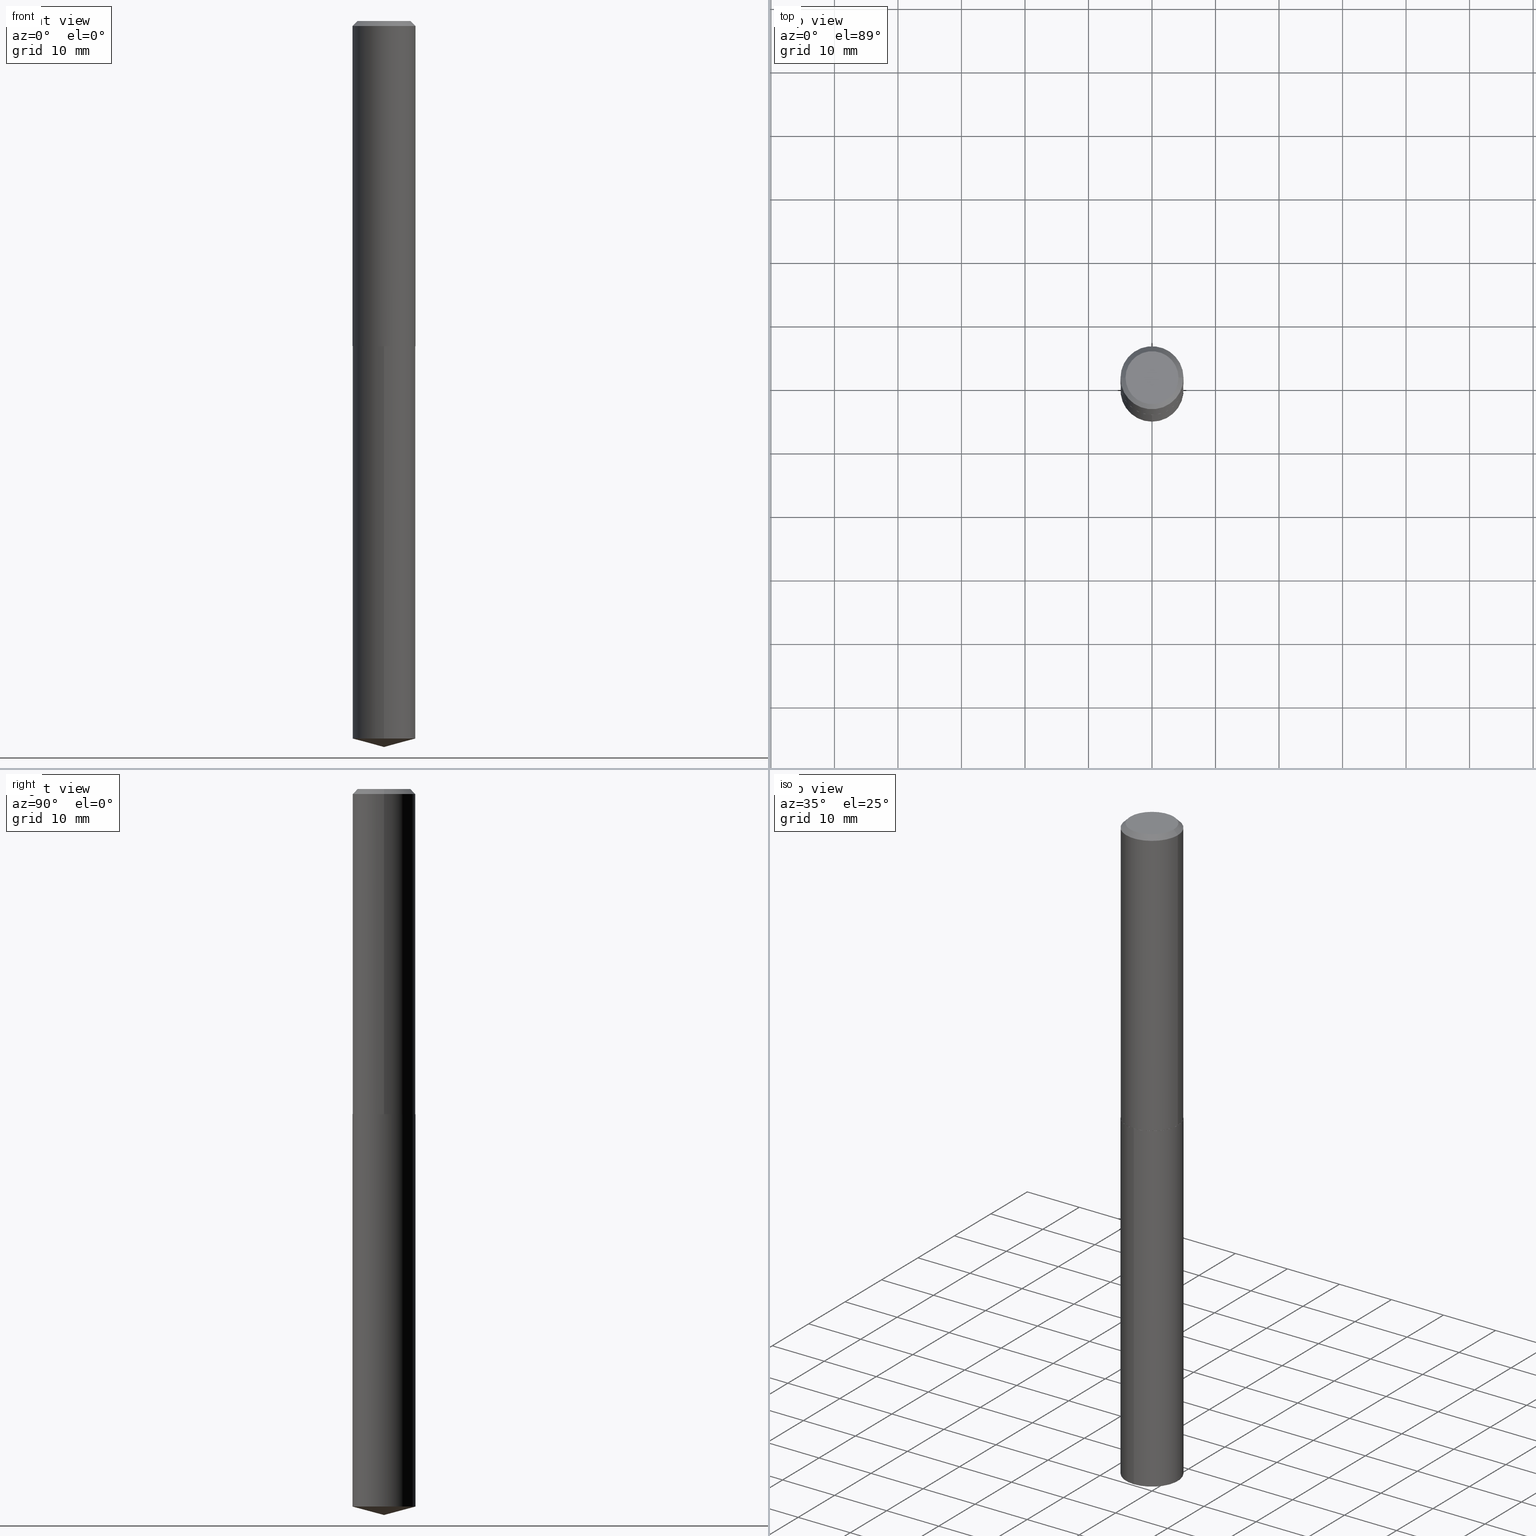
[diagram: canonical four-view strip — front | top / right | iso, engineering-drawing reading convention]
A machine part, canonical four-view strip (front | top / right | iso — engineering-drawing reading convention). The complete STEP part file that produces these views, byte-faithful:
ISO-10303-21;
HEADER;
FILE_DESCRIPTION (( 'STEP AP203' ),
    '1' );
FILE_NAME ('53125.STEP',
    '2024-04-22T19:13:53',
    ( '' ),
    ( '' ),
    'SwSTEP 2.0',
    'SolidWorks 2023',
    '' );
FILE_SCHEMA (( 'CONFIG_CONTROL_DESIGN' ));
ENDSEC;

DATA;
#1 = ORIENTED_EDGE ( 'NONE', *, *, #51, .F. ) ;
#2 = MANIFOLD_SOLID_BREP ( 'Body-Move/Copy2[1]', #135 ) ;
#3 = LOCAL_TIME ( 15, 13, 53.00000000000000000, #104 ) ;
#4 = ORIENTED_EDGE ( 'NONE', *, *, #304, .F. ) ;
#5 = FACE_OUTER_BOUND ( 'NONE', #390, .T. ) ;
#6 = PERSON_AND_ORGANIZATION_ROLE ( 'design_owner' ) ;
#7 = ORIENTED_EDGE ( 'NONE', *, *, #27, .T. ) ;
#8 = ADVANCED_FACE ( 'NONE', ( #108 ), #387, .T. ) ;
#9 = CIRCLE ( 'NONE', #95, 0.1640500000000000014 ) ;
#10 = VECTOR ( 'NONE', #227, 39.37007874015748143 ) ;
#11 = ORIENTED_EDGE ( 'NONE', *, *, #361, .T. ) ;
#12 = APPROVAL_STATUS ( 'not_yet_approved' ) ;
#13 = FACE_OUTER_BOUND ( 'NONE', #364, .T. ) ;
#14 = CC_DESIGN_PERSON_AND_ORGANIZATION_ASSIGNMENT ( #161, #6, ( #86 ) ) ;
#15 = VECTOR ( 'NONE', #233, 39.37007874015748143 ) ;
#16 = CIRCLE ( 'NONE', #160, 0.1640500000000000014 ) ;
#17 = CARTESIAN_POINT ( 'NONE',  ( 7.642090019328603538E-31, -1.091087918388490390E-16, -0.03125000000000021511 ) ) ;
#18 = ORIENTED_EDGE ( 'NONE', *, *, #222, .F. ) ;
#19 = DIRECTION ( 'NONE',  ( 1.000000000000000000, -6.982962677686263555E-15, 0.000000000000000000 ) ) ;
#20 = PRODUCT_DEFINITION ( 'UNKNOWN', '', #143, #290 ) ;
#21 = CARTESIAN_POINT ( 'NONE',  ( 1.387689962939524582E-15, 0.1952999999999929515, -2.015600000000000946 ) ) ;
#22 = DIRECTION ( 'NONE',  ( -6.982962677686266711E-15, -1.000000000000000000, 3.510303681827571802E-15 ) ) ;
#23 = AXIS2_PLACEMENT_3D ( 'NONE', #360, #324, #102 ) ;
#24 = DIRECTION ( 'NONE',  ( -6.982962677686266711E-15, -1.000000000000000000, 3.510303681827571802E-15 ) ) ;
#25 = DIRECTION ( 'NONE',  ( 1.000000000000000000, -6.982962677686265922E-15, 4.876176775795935793E-29 ) ) ;
#26 = LINE ( 'NONE', #260, #355 ) ;
#27 = EDGE_CURVE ( 'NONE', #33, #138, #326, .T. ) ;
#28 = FACE_OUTER_BOUND ( 'NONE', #250, .T. ) ;
#29 = AXIS2_PLACEMENT_3D ( 'NONE', #207, #346, #87 ) ;
#30 = EDGE_LOOP ( 'NONE', ( #193, #254, #317, #249 ) ) ;
#31 = APPROVAL ( #64, 'UNSPECIFIED' ) ;
#32 = ORIENTED_EDGE ( 'NONE', *, *, #170, .F. ) ;
#33 = VERTEX_POINT ( 'NONE', #333 ) ;
#34 = CLOSED_SHELL ( 'NONE', ( #296, #88, #376, #255, #8, #236, #294, #199 ) ) ;
#35 = AXIS2_PLACEMENT_3D ( 'NONE', #195, #47, #19 ) ;
#36 = ORIENTED_EDGE ( 'NONE', *, *, #66, .T. ) ;
#37 = EDGE_CURVE ( 'NONE', #303, #297, #305, .T. ) ;
#38 =( NAMED_UNIT ( * ) SI_UNIT ( $, .STERADIAN. ) SOLID_ANGLE_UNIT ( ) );
#39 = EDGE_LOOP ( 'NONE', ( #226, #36, #146, #75 ) ) ;
#40 = PERSON_AND_ORGANIZATION ( #132, #349 ) ;
#41 = DIRECTION ( 'NONE',  ( 6.863315791527699781E-15, 0.9659258262890704216, 0.2588190451025125793 ) ) ;
#42 = CARTESIAN_POINT ( 'NONE',  ( 4.929086925746762098E-29, -7.037429786572245232E-15, -2.015600000000000058 ) ) ;
#43 = CIRCLE ( 'NONE', #231, 0.1953000000000002789 ) ;
#44 = AXIS2_PLACEMENT_3D ( 'NONE', #197, #225, #334 ) ;
#45 = EDGE_LOOP ( 'NONE', ( #65, #127 ) ) ;
#46 = ORIENTED_EDGE ( 'NONE', *, *, #320, .T. ) ;
#47 = DIRECTION ( 'NONE',  ( -2.445468806185136597E-29, 3.491481338843145583E-15, 1.000000000000000000 ) ) ;
#48 = AXIS2_PLACEMENT_3D ( 'NONE', #262, #92, #201 ) ;
#49 = ORIENTED_EDGE ( 'NONE', *, *, #77, .T. ) ;
#50 = APPROVAL_PERSON_ORGANIZATION ( #68, #31, #183 ) ;
#51 = EDGE_CURVE ( 'NONE', #252, #366, #337, .T. ) ;
#52 = DIRECTION ( 'NONE',  ( -2.445401014960176786E-29, 3.491578419735724613E-15, 1.000000000000000000 ) ) ;
#53 = DIRECTION ( 'NONE',  ( -6.982962677686265922E-15, -1.000000000000000000, 2.797591391361252770E-15 ) ) ;
#54 = DIRECTION ( 'NONE',  ( 0.7071067811861854180, -2.468850131078463428E-15, 0.7071067811869097275 ) ) ;
#55 = DIRECTION ( 'NONE',  ( -2.438088387897960049E-29, 3.491481338843145188E-15, 1.000000000000000000 ) ) ;
#56 = CARTESIAN_POINT ( 'NONE',  ( -8.527118930292935288E-28, 1.217518100998664342E-13, 34.87007874015748143 ) ) ;
#57 = AXIS2_PLACEMENT_3D ( 'NONE', #292, #126, #274 ) ;
#58 = CARTESIAN_POINT ( 'NONE',  ( 0.1953000000000002789, -8.399456656854951226E-15, -2.015099999999999891 ) ) ;
#59 = DIRECTION ( 'NONE',  ( -2.445401014960176786E-29, 3.491578419735724613E-15, 1.000000000000000000 ) ) ;
#60 = EDGE_CURVE ( 'NONE', #252, #303, #79, .T. ) ;
#61 = CIRCLE ( 'NONE', #378, 0.1953000000000000014 ) ;
#62 = CONICAL_SURFACE ( 'NONE', #57, 0.1953000000000000014, 0.7853981633974450594 ) ;
#63 = DIRECTION ( 'NONE',  ( -2.445468806185136597E-29, 3.491481338843145583E-15, 1.000000000000000000 ) ) ;
#64 = APPROVAL_STATUS ( 'not_yet_approved' ) ;
#65 = ORIENTED_EDGE ( 'NONE', *, *, #159, .T. ) ;
#66 = EDGE_CURVE ( 'NONE', #138, #182, #176, .T. ) ;
#67 = AXIS2_PLACEMENT_3D ( 'NONE', #287, #113, #22 ) ;
#68 = PERSON_AND_ORGANIZATION ( #132, #349 ) ;
#69 = ORIENTED_EDGE ( 'NONE', *, *, #241, .T. ) ;
#70 = CALENDAR_DATE ( 2024, 22, 4 ) ;
#71 = EDGE_LOOP ( 'NONE', ( #32, #7, #368 ) ) ;
#72 = DIRECTION ( 'NONE',  ( -6.982962677686265922E-15, -1.000000000000000000, 2.797591391361252770E-15 ) ) ;
#73 = APPROVAL_ROLE ( '' ) ;
#74 = APPLICATION_CONTEXT ( 'configuration controlled 3d designs of mechanical parts and assemblies' ) ;
#75 = ORIENTED_EDGE ( 'NONE', *, *, #94, .F. ) ;
#76 = DIRECTION ( 'NONE',  ( 1.000000000000000000, -6.982962677686269077E-15, 0.000000000000000000 ) ) ;
#77 = EDGE_CURVE ( 'NONE', #209, #297, #315, .T. ) ;
#78 = CALENDAR_DATE ( 2024, 22, 4 ) ;
#79 = CIRCLE ( 'NONE', #242, 0.1953000000000002789 ) ;
#80 = DIRECTION ( 'NONE',  ( -6.982962677686265922E-15, -1.000000000000000000, 2.797591391361252770E-15 ) ) ;
#81 = CONICAL_SURFACE ( 'NONE', #211, 0.1953000000000000014, 0.7853981633974450594 ) ;
#82 = COORDINATED_UNIVERSAL_TIME_OFFSET ( 5, 0, .BEHIND. ) ;
#83 = CARTESIAN_POINT ( 'NONE',  ( 1.087647220505556857E-28, -1.552919124739208263E-14, -4.447669522718203261 ) ) ;
#84 = PLANE ( 'NONE',  #117 ) ;
#85 = DIRECTION ( 'NONE',  ( -2.445401014960176786E-29, 3.491578419735724613E-15, 1.000000000000000000 ) ) ;
#86 = PRODUCT ( '53125', '53125', '', ( #321 ) ) ;
#87 = DIRECTION ( 'NONE',  ( -6.982962677686265922E-15, -1.000000000000000000, 2.797591391361252770E-15 ) ) ;
#88 = ADVANCED_FACE ( 'NONE', ( #121 ), #347, .T. ) ;
#89 = DIRECTION ( 'NONE',  ( -6.745023994389847810E-15, -0.9659258262890687563, 0.2588190451025194627 ) ) ;
#90 = LOCAL_TIME ( 15, 13, 53.00000000000000000, #256 ) ;
#91 = FACE_OUTER_BOUND ( 'NONE', #30, .T. ) ;
#92 = DIRECTION ( 'NONE',  ( -2.445468806185136597E-29, 3.491481338843145583E-15, 1.000000000000000000 ) ) ;
#93 = CARTESIAN_POINT ( 'NONE',  ( 0.000000000000000000, 0.000000000000000000, 0.000000000000000000 ) ) ;
#94 = EDGE_CURVE ( 'NONE', #245, #168, #310, .T. ) ;
#95 = AXIS2_PLACEMENT_3D ( 'NONE', #229, #120, #147 ) ;
#96 = COORDINATED_UNIVERSAL_TIME_OFFSET ( 5, 0, .BEHIND. ) ;
#97 = CARTESIAN_POINT ( 'NONE',  ( 0.1948000000000008891, -8.397710916185535244E-15, -2.015600000000000058 ) ) ;
#98 = EDGE_CURVE ( 'NONE', #297, #366, #61, .T. ) ;
#99 = APPROVAL_DATE_TIME ( #248, #137 ) ;
#100 = ORIENTED_EDGE ( 'NONE', *, *, #162, .F. ) ;
#101 = VECTOR ( 'NONE', #41, 39.37007874015749564 ) ;
#102 = DIRECTION ( 'NONE',  ( 1.000000000000000000, 0.000000000000000000, 0.000000000000000000 ) ) ;
#103 = ORIENTED_EDGE ( 'NONE', *, *, #60, .F. ) ;
#104 = COORDINATED_UNIVERSAL_TIME_OFFSET ( 5, 0, .BEHIND. ) ;
#105 = CC_DESIGN_DATE_AND_TIME_ASSIGNMENT ( #219, #319, ( #20 ) ) ;
#106 = ORIENTED_EDGE ( 'NONE', *, *, #385, .F. ) ;
#107 = CIRCLE ( 'NONE', #44, 0.1948000000000008891 ) ;
#108 = FACE_OUTER_BOUND ( 'NONE', #134, .T. ) ;
#109 = CARTESIAN_POINT ( 'NONE',  ( -0.1953000000000002789, -5.647994082963345492E-15, -2.015099999999999891 ) ) ;
#110 = DIRECTION ( 'NONE',  ( -2.445468806185136597E-29, 3.491481338843145583E-15, 1.000000000000000000 ) ) ;
#111 = CARTESIAN_POINT ( 'NONE',  ( 4.929086925746762098E-29, -7.037429786572245232E-15, -2.015600000000000058 ) ) ;
#112 = APPROVAL_STATUS ( 'not_yet_approved' ) ;
#113 = DIRECTION ( 'NONE',  ( -2.445401014960176786E-29, 3.491578419735724613E-15, 1.000000000000000000 ) ) ;
#114 = DIRECTION ( 'NONE',  ( 2.445401014960177067E-29, -3.491578419735724218E-15, -1.000000000000000000 ) ) ;
#115 = VECTOR ( 'NONE', #54, 39.37007874015748143 ) ;
#116 = FACE_OUTER_BOUND ( 'NONE', #196, .T. ) ;
#117 = AXIS2_PLACEMENT_3D ( 'NONE', #311, #55, #25 ) ;
#118 = DIRECTION ( 'NONE',  ( -2.445401014960176786E-29, 3.491578419735724218E-15, 1.000000000000000000 ) ) ;
#119 = DIRECTION ( 'NONE',  ( -2.445401014960176786E-29, 3.491578419735724613E-15, 1.000000000000000000 ) ) ;
#120 = DIRECTION ( 'NONE',  ( -2.445468806185136597E-29, 3.491481338843145583E-15, 1.000000000000000000 ) ) ;
#121 = FACE_OUTER_BOUND ( 'NONE', #221, .T. ) ;
#122 = ADVANCED_FACE ( 'NONE', ( #28 ), #362, .T. ) ;
#123 = CARTESIAN_POINT ( 'NONE',  ( 4.927864191343668736E-29, -7.035684045902822940E-15, -2.015099999999999891 ) ) ;
#124 = CARTESIAN_POINT ( 'NONE',  ( -1.363772610952019029E-15, -0.1953000000000155445, -4.447669522718202373 ) ) ;
#125 = ORIENTED_EDGE ( 'NONE', *, *, #170, .T. ) ;
#126 = DIRECTION ( 'NONE',  ( 2.445468806185136597E-29, -3.491481338843145583E-15, -1.000000000000000000 ) ) ;
#127 = ORIENTED_EDGE ( 'NONE', *, *, #299, .T. ) ;
#128 = AXIS2_PLACEMENT_3D ( 'NONE', #154, #177, #386 ) ;
#129 = DIRECTION ( 'NONE',  ( -1.000000000000000000, 6.982962677686265922E-15, 0.000000000000000000 ) ) ;
#130 = CALENDAR_DATE ( 2024, 22, 4 ) ;
#131 = ORIENTED_EDGE ( 'NONE', *, *, #51, .T. ) ;
#132 = PERSON ( 'UNSPECIFIED', 'UNSPECIFIED', 'UNSPECIFIED', ('UNSPECIFIED'), ('UNSPECIFIED'), ('UNSPECIFIED') ) ;
#133 = CARTESIAN_POINT ( 'NONE',  ( 0.1953000000000002789, -8.399456656854951226E-15, -2.015099999999999891 ) ) ;
#134 = EDGE_LOOP ( 'NONE', ( #4, #11, #276, #103 ) ) ;
#135 = CLOSED_SHELL ( 'NONE', ( #172, #212, #122, #264, #343 ) ) ;
#136 = CIRCLE ( 'NONE', #29, 0.1953000000000000014 ) ;
#137 = APPROVAL ( #12, 'UNSPECIFIED' ) ;
#138 = VERTEX_POINT ( 'NONE', #383 ) ;
#139 = CARTESIAN_POINT ( 'NONE',  ( -0.1953000000000000014, -2.184706455931358572E-15, -0.03125000000000021511 ) ) ;
#140 = MANIFOLD_SOLID_BREP ( 'Body-Move/Copy2[2]', #34 ) ;
#141 = ORIENTED_EDGE ( 'NONE', *, *, #66, .F. ) ;
#142 = AXIS2_PLACEMENT_3D ( 'NONE', #171, #232, #351 ) ;
#143 = PRODUCT_DEFINITION_FORMATION_WITH_SPECIFIED_SOURCE ( 'ANY', '', #86, .NOT_KNOWN. ) ;
#144 = ORIENTED_EDGE ( 'NONE', *, *, #304, .T. ) ;
#145 = DIRECTION ( 'NONE',  ( -2.445468806185136597E-29, 3.491481338843145583E-15, 1.000000000000000000 ) ) ;
#146 = ORIENTED_EDGE ( 'NONE', *, *, #320, .F. ) ;
#147 = DIRECTION ( 'NONE',  ( 1.000000000000000000, -6.982962677686266711E-15, 4.876144440966847435E-29 ) ) ;
#148 = CC_DESIGN_PERSON_AND_ORGANIZATION_ASSIGNMENT ( #220, #370, ( #192 ) ) ;
#149 = CC_DESIGN_APPROVAL ( #31, ( #143 ) ) ;
#150 = LINE ( 'NONE', #340, #175 ) ;
#151 = CYLINDRICAL_SURFACE ( 'NONE', #167, 0.1953000000000000014 ) ;
#152 = DIRECTION ( 'NONE',  ( -2.445468806185136597E-29, 3.491481338843145583E-15, 1.000000000000000000 ) ) ;
#153 = CARTESIAN_POINT ( 'NONE',  ( -0.1640500000000000014, 1.200109423193855424E-15, 9.552245033267324686E-19 ) ) ;
#154 = CARTESIAN_POINT ( 'NONE',  ( -1.167985862904636054E-47, 1.667574263899818204E-33, 4.776122516674673095E-19 ) ) ;
#155 = FACE_OUTER_BOUND ( 'NONE', #71, .T. ) ;
#156 = VECTOR ( 'NONE', #373, 39.37007874015748143 ) ;
#157 = CIRCLE ( 'NONE', #180, 0.1953000000000000014 ) ;
#158 = EDGE_LOOP ( 'NONE', ( #331, #164 ) ) ;
#159 = EDGE_CURVE ( 'NONE', #271, #209, #9, .T. ) ;
#160 = AXIS2_PLACEMENT_3D ( 'NONE', #272, #63, #358 ) ;
#161 = PERSON_AND_ORGANIZATION ( #132, #349 ) ;
#162 = EDGE_CURVE ( 'NONE', #138, #245, #204, .T. ) ;
#163 = PERSON_AND_ORGANIZATION_ROLE ( 'creator' ) ;
#164 = ORIENTED_EDGE ( 'NONE', *, *, #361, .F. ) ;
#165 = DIRECTION ( 'NONE',  ( -2.445468806185136597E-29, 3.491481338843145583E-15, 1.000000000000000000 ) ) ;
#166 = PERSON_AND_ORGANIZATION ( #132, #349 ) ;
#167 = AXIS2_PLACEMENT_3D ( 'NONE', #382, #119, #234 ) ;
#168 = VERTEX_POINT ( 'NONE', #235 ) ;
#169 = ORIENTED_EDGE ( 'NONE', *, *, #94, .T. ) ;
#170 = EDGE_CURVE ( 'NONE', #33, #245, #26, .T. ) ;
#171 = CARTESIAN_POINT ( 'NONE',  ( 4.929086925746762098E-29, -7.037429786572245232E-15, -2.015600000000000058 ) ) ;
#172 = ADVANCED_FACE ( 'NONE', ( #377 ), #239, .T. ) ;
#173 = APPROVAL_DATE_TIME ( #375, #283 ) ;
#174 = CARTESIAN_POINT ( 'NONE',  ( -1.363772610952078588E-15, -0.1953000000000070235, -2.015599999999999614 ) ) ;
#175 = VECTOR ( 'NONE', #198, 39.37007874015748143 ) ;
#176 = LINE ( 'NONE', #21, #348 ) ;
#177 = DIRECTION ( 'NONE',  ( 2.438088387897960049E-29, -3.491481338843145188E-15, -1.000000000000000000 ) ) ;
#178 = FACE_OUTER_BOUND ( 'NONE', #45, .T. ) ;
#179 = AXIS2_PLACEMENT_3D ( 'NONE', #56, #85, #24 ) ;
#180 = AXIS2_PLACEMENT_3D ( 'NONE', #309, #291, #53 ) ;
#181 = APPLICATION_CONTEXT ( 'configuration controlled 3d designs of mechanical parts and assemblies' ) ;
#182 = VERTEX_POINT ( 'NONE', #206 ) ;
#183 = APPROVAL_ROLE ( '' ) ;
#184 = ORIENTED_EDGE ( 'NONE', *, *, #37, .T. ) ;
#185 = EDGE_CURVE ( 'NONE', #301, #303, #314, .T. ) ;
#186 = DATE_AND_TIME ( #325, #223 ) ;
#187 = EDGE_LOOP ( 'NONE', ( #46, #257 ) ) ;
#188 = APPLICATION_PROTOCOL_DEFINITION ( 'international standard', 'config_control_design', 1994, #181 ) ;
#189 = VERTEX_POINT ( 'NONE', #265 ) ;
#190 = PLANE ( 'NONE',  #363 ) ;
#191 = VECTOR ( 'NONE', #371, 39.37007874015748143 ) ;
#192 = SECURITY_CLASSIFICATION ( '', '', #200 ) ;
#193 = ORIENTED_EDGE ( 'NONE', *, *, #77, .F. ) ;
#194 = ORIENTED_EDGE ( 'NONE', *, *, #267, .F. ) ;
#195 = CARTESIAN_POINT ( 'NONE',  ( 4.927864191343668736E-29, -7.035684045902822940E-15, -2.015099999999999891 ) ) ;
#196 = EDGE_LOOP ( 'NONE', ( #1, #281, #184, #106 ) ) ;
#197 = CARTESIAN_POINT ( 'NONE',  ( 4.929086925746761537E-29, -7.037429786572244443E-15, -2.015600000000000058 ) ) ;
#198 = DIRECTION ( 'NONE',  ( -0.7071067811865452413, 2.468850131082233000E-15, -0.7071067811865497932 ) ) ;
#199 = ADVANCED_FACE ( 'NONE', ( #178 ), #342, .F. ) ;
#200 = SECURITY_CLASSIFICATION_LEVEL ( 'unclassified' ) ;
#201 = DIRECTION ( 'NONE',  ( 1.000000000000000000, -6.982962677686265922E-15, 4.876176775795935793E-29 ) ) ;
#202 = CARTESIAN_POINT ( 'NONE',  ( -0.1953000000000001402, 1.387689962939476659E-15, -9.606680231267837403E-30 ) ) ;
#203 = PRODUCT_DEFINITION_SHAPE ( 'NONE', 'NONE',  #20 ) ;
#204 = CIRCLE ( 'NONE', #300, 0.1953000000000000014 ) ;
#205 = CC_DESIGN_SECURITY_CLASSIFICATION ( #192, ( #143 ) ) ;
#206 = CARTESIAN_POINT ( 'NONE',  ( 1.387689962939584536E-15, 0.1952999999999929237, -2.015600000000000946 ) ) ;
#207 = CARTESIAN_POINT ( 'NONE',  ( 4.929086925746762098E-29, -7.037429786572245232E-15, -2.015600000000000058 ) ) ;
#208 = DIRECTION ( 'NONE',  ( 1.000000000000000000, -6.982962677686265922E-15, 0.000000000000000000 ) ) ;
#209 = VERTEX_POINT ( 'NONE', #293 ) ;
#210 = AXIS2_PLACEMENT_3D ( 'NONE', #17, #145, #338 ) ;
#211 = AXIS2_PLACEMENT_3D ( 'NONE', #246, #318, #129 ) ;
#212 = ADVANCED_FACE ( 'NONE', ( #155 ), #237, .T. ) ;
#213 = PERSON_AND_ORGANIZATION ( #132, #349 ) ;
#214 = ORIENTED_EDGE ( 'NONE', *, *, #98, .T. ) ;
#215 = PERSON_AND_ORGANIZATION_ROLE ( 'creator' ) ;
#216 = VECTOR ( 'NONE', #381, 39.37007874015748143 ) ;
#217 = COORDINATED_UNIVERSAL_TIME_OFFSET ( 5, 0, .BEHIND. ) ;
#218 = DIRECTION ( 'NONE',  ( 1.000000000000000000, -6.982962677686263555E-15, 0.000000000000000000 ) ) ;
#219 = DATE_AND_TIME ( #70, #3 ) ;
#220 = PERSON_AND_ORGANIZATION ( #132, #349 ) ;
#221 = EDGE_LOOP ( 'NONE', ( #69, #131, #354, #330 ) ) ;
#222 = EDGE_CURVE ( 'NONE', #271, #366, #150, .T. ) ;
#223 = LOCAL_TIME ( 15, 13, 53.00000000000000000, #217 ) ;
#224 = CARTESIAN_POINT ( 'NONE',  ( 4.927864191343668736E-29, -7.035684045902822940E-15, -2.015099999999999891 ) ) ;
#225 = DIRECTION ( 'NONE',  ( -2.445468806185136597E-29, 3.491481338843145583E-15, 1.000000000000000000 ) ) ;
#226 = ORIENTED_EDGE ( 'NONE', *, *, #228, .T. ) ;
#227 = DIRECTION ( 'NONE',  ( -0.7071067811861854180, 7.493145998869046229E-15, 0.7071067811869097275 ) ) ;
#228 = EDGE_CURVE ( 'NONE', #245, #138, #157, .T. ) ;
#229 = CARTESIAN_POINT ( 'NONE',  ( -2.335971725809272108E-47, 3.335148527799636409E-33, 9.552245033349346191E-19 ) ) ;
#230 = CARTESIAN_POINT ( 'NONE',  ( 4.929086925746761537E-29, -7.037429786572244443E-15, -2.015600000000000058 ) ) ;
#231 = AXIS2_PLACEMENT_3D ( 'NONE', #123, #352, #344 ) ;
#232 = DIRECTION ( 'NONE',  ( -2.445401014960176786E-29, 3.491578419735724613E-15, 1.000000000000000000 ) ) ;
#233 = DIRECTION ( 'NONE',  ( 0.7071067811865452413, -7.319954787623248157E-15, -0.7071067811865497932 ) ) ;
#234 = DIRECTION ( 'NONE',  ( -6.982962677686265922E-15, -1.000000000000000000, 2.797591391361252770E-15 ) ) ;
#235 = CARTESIAN_POINT ( 'NONE',  ( -1.363772610952078588E-15, -0.1953000000000070235, -2.015599999999999614 ) ) ;
#236 = ADVANCED_FACE ( 'NONE', ( #116 ), #266, .T. ) ;
#237 = CONICAL_SURFACE ( 'NONE', #67, 146.9311341562578832, 1.308996938995752091 ) ;
#238 = CC_DESIGN_APPROVAL ( #137, ( #20 ) ) ;
#239 = CYLINDRICAL_SURFACE ( 'NONE', #142, 0.1953000000000000014 ) ;
#240 = DIRECTION ( 'NONE',  ( 1.000000000000000000, -6.982962677686265922E-15, 4.876176775795935793E-29 ) ) ;
#241 = EDGE_CURVE ( 'NONE', #303, #252, #43, .T. ) ;
#242 = AXIS2_PLACEMENT_3D ( 'NONE', #286, #152, #312 ) ;
#243 = CIRCLE ( 'NONE', #210, 0.1953000000000000014 ) ;
#244 =( NAMED_UNIT ( * ) PLANE_ANGLE_UNIT ( ) SI_UNIT ( $, .RADIAN. ) );
#245 = VERTEX_POINT ( 'NONE', #124 ) ;
#246 = CARTESIAN_POINT ( 'NONE',  ( 7.642090019328603538E-31, -1.091087918388490390E-16, -0.03125000000000021511 ) ) ;
#247 = CC_DESIGN_DATE_AND_TIME_ASSIGNMENT ( #259, #372, ( #192 ) ) ;
#248 = DATE_AND_TIME ( #130, #302 ) ;
#249 = ORIENTED_EDGE ( 'NONE', *, *, #385, .T. ) ;
#250 = EDGE_LOOP ( 'NONE', ( #295, #125, #100 ) ) ;
#251 = LINE ( 'NONE', #109, #10 ) ;
#252 = VERTEX_POINT ( 'NONE', #380 ) ;
#253 = CC_DESIGN_APPROVAL ( #283, ( #192 ) ) ;
#254 = ORIENTED_EDGE ( 'NONE', *, *, #159, .F. ) ;
#255 = ADVANCED_FACE ( 'NONE', ( #353 ), #84, .F. ) ;
#256 = COORDINATED_UNIVERSAL_TIME_OFFSET ( 5, 0, .BEHIND. ) ;
#257 = ORIENTED_EDGE ( 'NONE', *, *, #267, .T. ) ;
#258 = DIRECTION ( 'NONE',  ( 6.982962677686265922E-15, 1.000000000000000000, -3.491578419735724218E-15 ) ) ;
#259 = DATE_AND_TIME ( #280, #90 ) ;
#260 = CARTESIAN_POINT ( 'NONE',  ( 1.100430456732079610E-28, -1.571210288881076234E-14, -4.500000000000000000 ) ) ;
#261 = CONICAL_SURFACE ( 'NONE', #35, 0.1953000000000002789, 0.7853981633969361331 ) ;
#262 = CARTESIAN_POINT ( 'NONE',  ( 0.000000000000000000, 0.000000000000000000, 0.000000000000000000 ) ) ;
#263 = DIRECTION ( 'NONE',  ( -2.445468806185136597E-29, 3.491481338843145583E-15, 1.000000000000000000 ) ) ;
#264 = ADVANCED_FACE ( 'NONE', ( #288 ), #151, .T. ) ;
#265 = CARTESIAN_POINT ( 'NONE',  ( -0.1948000000000008891, -5.650643310137454326E-15, -2.015600000000000058 ) ) ;
#266 = CYLINDRICAL_SURFACE ( 'NONE', #379, 0.1953000000000001402 ) ;
#267 = EDGE_CURVE ( 'NONE', #182, #168, #136, .T. ) ;
#268 = EDGE_LOOP ( 'NONE', ( #141, #359, #169, #194 ) ) ;
#269 = ORIENTED_EDGE ( 'NONE', *, *, #336, .T. ) ;
#270 = AXIS2_PLACEMENT_3D ( 'NONE', #230, #165, #76 ) ;
#271 = VERTEX_POINT ( 'NONE', #153 ) ;
#272 = CARTESIAN_POINT ( 'NONE',  ( -2.335971725809272108E-47, 3.335148527799636409E-33, 9.552245033349346191E-19 ) ) ;
#273 = ORIENTED_EDGE ( 'NONE', *, *, #299, .F. ) ;
#274 = DIRECTION ( 'NONE',  ( -1.000000000000000000, 6.982962677686265922E-15, 0.000000000000000000 ) ) ;
#275 =( CONVERSION_BASED_UNIT ( 'INCH', #285 ) LENGTH_UNIT ( ) NAMED_UNIT ( #328 ) );
#276 = ORIENTED_EDGE ( 'NONE', *, *, #185, .T. ) ;
#277 = AXIS2_PLACEMENT_3D ( 'NONE', #224, #110, #218 ) ;
#278 = CIRCLE ( 'NONE', #307, 0.1953000000000000014 ) ;
#279 = CC_DESIGN_PERSON_AND_ORGANIZATION_ASSIGNMENT ( #339, #367, ( #143 ) ) ;
#280 = CALENDAR_DATE ( 2024, 22, 4 ) ;
#281 = ORIENTED_EDGE ( 'NONE', *, *, #60, .T. ) ;
#282 = CARTESIAN_POINT ( 'NONE',  ( 0.1953000000000001402, -1.363772610952128681E-15, 9.523173243129469184E-30 ) ) ;
#283 = APPROVAL ( #112, 'UNSPECIFIED' ) ;
#284 = PERSON_AND_ORGANIZATION ( #132, #349 ) ;
#285 = LENGTH_MEASURE_WITH_UNIT ( LENGTH_MEASURE( 0.02539999999999999897 ), #341 );
#286 = CARTESIAN_POINT ( 'NONE',  ( 4.927864191343668736E-29, -7.035684045902822940E-15, -2.015099999999999891 ) ) ;
#287 = CARTESIAN_POINT ( 'NONE',  ( -8.527118930292935288E-28, 1.217518100998664342E-13, 34.87007874015748143 ) ) ;
#288 = FACE_OUTER_BOUND ( 'NONE', #268, .T. ) ;
#289 = CARTESIAN_POINT ( 'NONE',  ( 0.1953000000000000014, -1.448964050803629211E-15, -0.03125000000000021511 ) ) ;
#290 = DESIGN_CONTEXT ( 'detailed design', #74, 'design' ) ;
#291 = DIRECTION ( 'NONE',  ( -2.445401014960176786E-29, 3.491578419735724613E-15, 1.000000000000000000 ) ) ;
#292 = CARTESIAN_POINT ( 'NONE',  ( 7.642090019328603538E-31, -1.091087918388490390E-16, -0.03125000000000021511 ) ) ;
#293 = CARTESIAN_POINT ( 'NONE',  ( 0.1640500000000000014, -1.287214373669024480E-15, 9.552245033434404887E-19 ) ) ;
#294 = ADVANCED_FACE ( 'NONE', ( #91 ), #62, .T. ) ;
#295 = ORIENTED_EDGE ( 'NONE', *, *, #27, .F. ) ;
#296 = ADVANCED_FACE ( 'NONE', ( #5 ), #81, .T. ) ;
#297 = VERTEX_POINT ( 'NONE', #323 ) ;
#298 = APPROVAL_DATE_TIME ( #186, #31 ) ;
#299 = EDGE_CURVE ( 'NONE', #209, #271, #16, .T. ) ;
#300 = AXIS2_PLACEMENT_3D ( 'NONE', #83, #59, #80 ) ;
#301 = VERTEX_POINT ( 'NONE', #97 ) ;
#302 = LOCAL_TIME ( 15, 13, 53.00000000000000000, #96 ) ;
#303 = VERTEX_POINT ( 'NONE', #133 ) ;
#304 = EDGE_CURVE ( 'NONE', #189, #252, #251, .T. ) ;
#305 = LINE ( 'NONE', #282, #191 ) ;
#306 = CARTESIAN_POINT ( 'NONE',  ( 1.100458024364974923E-28, -1.571171153631659819E-14, -4.500000000000000000 ) ) ;
#307 = AXIS2_PLACEMENT_3D ( 'NONE', #111, #52, #72 ) ;
#308 = ADVANCED_BREP_SHAPE_REPRESENTATION ( '53125', ( #2, #140, #23 ), #332 ) ;
#309 = CARTESIAN_POINT ( 'NONE',  ( 1.087647220505556857E-28, -1.552919124739208263E-14, -4.447669522718203261 ) ) ;
#310 = LINE ( 'NONE', #174, #156 ) ;
#311 = CARTESIAN_POINT ( 'NONE',  ( 6.902925574925449087E-29, -4.210780497029287161E-15, -2.015600000000000058 ) ) ;
#312 = DIRECTION ( 'NONE',  ( 1.000000000000000000, -6.982962677686263555E-15, 0.000000000000000000 ) ) ;
#313 = APPROVAL_PERSON_ORGANIZATION ( #284, #283, #73 ) ;
#314 = LINE ( 'NONE', #58, #115 ) ;
#315 = LINE ( 'NONE', #289, #15 ) ;
#316 = CC_DESIGN_PERSON_AND_ORGANIZATION_ASSIGNMENT ( #213, #215, ( #20 ) ) ;
#317 = ORIENTED_EDGE ( 'NONE', *, *, #222, .T. ) ;
#318 = DIRECTION ( 'NONE',  ( 2.445468806185136597E-29, -3.491481338843145583E-15, -1.000000000000000000 ) ) ;
#319 = DATE_TIME_ROLE ( 'creation_date' ) ;
#320 = EDGE_CURVE ( 'NONE', #168, #182, #278, .T. ) ;
#321 = MECHANICAL_CONTEXT ( 'NONE', #181, 'mechanical' ) ;
#322 = ORIENTED_EDGE ( 'NONE', *, *, #241, .F. ) ;
#323 = CARTESIAN_POINT ( 'NONE',  ( 0.1953000000000000014, -1.472881402790976795E-15, -0.03125000000000021511 ) ) ;
#324 = DIRECTION ( 'NONE',  ( 0.000000000000000000, 0.000000000000000000, 1.000000000000000000 ) ) ;
#325 = CALENDAR_DATE ( 2024, 22, 4 ) ;
#326 = LINE ( 'NONE', #306, #101 ) ;
#327 = PRODUCT_RELATED_PRODUCT_CATEGORY ( 'detail', '', ( #86 ) ) ;
#328 = DIMENSIONAL_EXPONENTS ( 1.000000000000000000, 0.000000000000000000, 0.000000000000000000, 0.000000000000000000, 0.000000000000000000, 0.000000000000000000, 0.000000000000000000 ) ;
#329 = APPLICATION_PROTOCOL_DEFINITION ( 'international standard', 'config_control_design', 1994, #74 ) ;
#330 = ORIENTED_EDGE ( 'NONE', *, *, #37, .F. ) ;
#331 = ORIENTED_EDGE ( 'NONE', *, *, #336, .F. ) ;
#332 =( GEOMETRIC_REPRESENTATION_CONTEXT ( 3 ) GLOBAL_UNCERTAINTY_ASSIGNED_CONTEXT ( ( #384 ) ) GLOBAL_UNIT_ASSIGNED_CONTEXT ( ( #275, #244, #38 ) ) REPRESENTATION_CONTEXT ( 'NONE', 'WORKASPACE' ) );
#333 = CARTESIAN_POINT ( 'NONE',  ( 1.100430456732079610E-28, -1.571210288881076234E-14, -4.500000000000000000 ) ) ;
#334 = DIRECTION ( 'NONE',  ( 1.000000000000000000, -6.982962677686269077E-15, 0.000000000000000000 ) ) ;
#335 = SHAPE_DEFINITION_REPRESENTATION ( #203, #308 ) ;
#336 = EDGE_CURVE ( 'NONE', #301, #189, #107, .T. ) ;
#337 = LINE ( 'NONE', #202, #216 ) ;
#338 = DIRECTION ( 'NONE',  ( 1.000000000000000000, -6.982962677686265922E-15, 0.000000000000000000 ) ) ;
#339 = PERSON_AND_ORGANIZATION ( #132, #349 ) ;
#340 = CARTESIAN_POINT ( 'NONE',  ( -0.1953000000000000014, 1.254663819113278791E-15, -0.03125000000000021511 ) ) ;
#341 =( LENGTH_UNIT ( ) NAMED_UNIT ( * ) SI_UNIT ( $, .METRE. ) );
#342 = PLANE ( 'NONE',  #128 ) ;
#343 = ADVANCED_FACE ( 'NONE', ( #374 ), #190, .F. ) ;
#344 = DIRECTION ( 'NONE',  ( 1.000000000000000000, -6.982962677686263555E-15, 0.000000000000000000 ) ) ;
#345 = CARTESIAN_POINT ( 'NONE',  ( 7.642090019328603538E-31, -1.091087918388490390E-16, -0.03125000000000021511 ) ) ;
#346 = DIRECTION ( 'NONE',  ( -2.445401014960176786E-29, 3.491578419735724613E-15, 1.000000000000000000 ) ) ;
#347 = CYLINDRICAL_SURFACE ( 'NONE', #48, 0.1953000000000001402 ) ;
#348 = VECTOR ( 'NONE', #118, 39.37007874015748143 ) ;
#349 = ORGANIZATION ( 'UNSPECIFIED', 'UNSPECIFIED', '' ) ;
#350 = CC_DESIGN_PERSON_AND_ORGANIZATION_ASSIGNMENT ( #40, #163, ( #143 ) ) ;
#351 = DIRECTION ( 'NONE',  ( -6.982962677686265922E-15, -1.000000000000000000, 2.797591391361252770E-15 ) ) ;
#352 = DIRECTION ( 'NONE',  ( -2.445468806185136597E-29, 3.491481338843145583E-15, 1.000000000000000000 ) ) ;
#353 = FACE_OUTER_BOUND ( 'NONE', #158, .T. ) ;
#354 = ORIENTED_EDGE ( 'NONE', *, *, #98, .F. ) ;
#355 = VECTOR ( 'NONE', #89, 39.37007874015747433 ) ;
#356 = CIRCLE ( 'NONE', #270, 0.1948000000000008891 ) ;
#357 = ORIENTED_EDGE ( 'NONE', *, *, #185, .F. ) ;
#358 = DIRECTION ( 'NONE',  ( 1.000000000000000000, -6.982962677686266711E-15, 4.876144440966847435E-29 ) ) ;
#359 = ORIENTED_EDGE ( 'NONE', *, *, #162, .T. ) ;
#360 = CARTESIAN_POINT ( 'NONE',  ( 0.000000000000000000, 0.000000000000000000, 0.000000000000000000 ) ) ;
#361 = EDGE_CURVE ( 'NONE', #189, #301, #356, .T. ) ;
#362 = CONICAL_SURFACE ( 'NONE', #179, 146.9311341562578832, 1.308996938995752091 ) ;
#363 = AXIS2_PLACEMENT_3D ( 'NONE', #42, #114, #258 ) ;
#364 = EDGE_LOOP ( 'NONE', ( #269, #144, #322, #357 ) ) ;
#365 = APPROVAL_ROLE ( '' ) ;
#366 = VERTEX_POINT ( 'NONE', #139 ) ;
#367 = PERSON_AND_ORGANIZATION_ROLE ( 'design_supplier' ) ;
#368 = ORIENTED_EDGE ( 'NONE', *, *, #228, .F. ) ;
#369 = LOCAL_TIME ( 15, 13, 53.00000000000000000, #82 ) ;
#370 = PERSON_AND_ORGANIZATION_ROLE ( 'classification_officer' ) ;
#371 = DIRECTION ( 'NONE',  ( -2.445468806185136877E-29, 3.491481338843145188E-15, 1.000000000000000000 ) ) ;
#372 = DATE_TIME_ROLE ( 'classification_date' ) ;
#373 = DIRECTION ( 'NONE',  ( -2.445401014960176786E-29, 3.491578419735724218E-15, 1.000000000000000000 ) ) ;
#374 = FACE_OUTER_BOUND ( 'NONE', #187, .T. ) ;
#375 = DATE_AND_TIME ( #78, #369 ) ;
#376 = ADVANCED_FACE ( 'NONE', ( #13 ), #261, .T. ) ;
#377 = FACE_OUTER_BOUND ( 'NONE', #39, .T. ) ;
#378 = AXIS2_PLACEMENT_3D ( 'NONE', #345, #263, #208 ) ;
#379 = AXIS2_PLACEMENT_3D ( 'NONE', #93, #389, #240 ) ;
#380 = CARTESIAN_POINT ( 'NONE',  ( -0.1953000000000002789, -5.647994082963345492E-15, -2.015099999999999891 ) ) ;
#381 = DIRECTION ( 'NONE',  ( -2.445468806185136877E-29, 3.491481338843145188E-15, 1.000000000000000000 ) ) ;
#382 = CARTESIAN_POINT ( 'NONE',  ( 4.929086925746762098E-29, -7.037429786572245232E-15, -2.015600000000000058 ) ) ;
#383 = CARTESIAN_POINT ( 'NONE',  ( 1.387689962939584141E-15, 0.1952999999999844583, -4.447669522718203261 ) ) ;
#384 = UNCERTAINTY_MEASURE_WITH_UNIT (LENGTH_MEASURE( 1.000000000000000082E-05 ), #275, 'distance_accuracy_value', 'NONE');
#385 = EDGE_CURVE ( 'NONE', #366, #297, #243, .T. ) ;
#386 = DIRECTION ( 'NONE',  ( -1.000000000000000000, 6.982962677686265922E-15, -4.876176775795935793E-29 ) ) ;
#387 = CONICAL_SURFACE ( 'NONE', #277, 0.1953000000000002789, 0.7853981633969361331 ) ;
#388 = APPROVAL_PERSON_ORGANIZATION ( #166, #137, #365 ) ;
#389 = DIRECTION ( 'NONE',  ( -2.445468806185136597E-29, 3.491481338843145583E-15, 1.000000000000000000 ) ) ;
#390 = EDGE_LOOP ( 'NONE', ( #273, #49, #214, #18 ) ) ;
ENDSEC;
END-ISO-10303-21;
